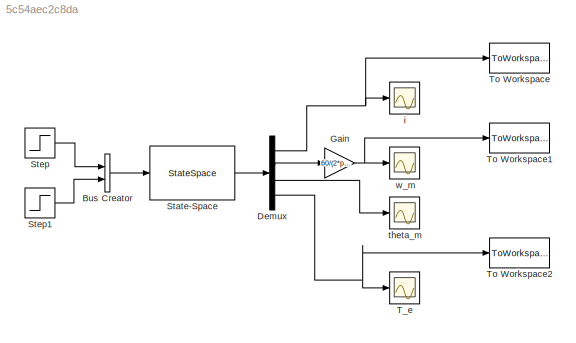
MODEL slx_5c54aec2c8da
KIND model
BLOCK [BusCreator] Bus Creator
  DisplayOption = bar
  Inputs = 2
  Ports = [2, 1]
BLOCK [Demux] Demux
  DisplayOption = bar
  Ports = [1, 4]
BLOCK [Gain] Gain
  Gain = 60/(2*pi)
  OutDataTypeStr = Inherit: Inherit via internal rule
  ParamDataTypeStr = Inherit: Inherit via internal rule
  SaturateOnIntegerOverflow = off
BLOCK [StateSpace] State-Space
  A = A
  B = B
  C = C
  D = D
BLOCK [Step] Step
  After = 12
  SampleTime = 0
  Time = 0
BLOCK [Step] Step1
  After = 0*2e-3
  SampleTime = 0
  Time = 0.2
BLOCK [Scope] T_e
  DataFormat = StructureWithTime
  Floating = off
  LimitDataPoints = off
  NumInputPorts = 1
  Ports = [1]
  SampleTime = 0
  SaveName = ScopeData3
  ShowLegends = off
BLOCK [ToWorkspace] To Workspace
  MaxDataPoints = inf
  Ports = [1]
  SampleTime = -1
  SaveFormat = Timeseries
  VariableName = i_DC
BLOCK [ToWorkspace] To Workspace1
  MaxDataPoints = inf
  Ports = [1]
  SampleTime = -1
  SaveFormat = Timeseries
  VariableName = wm_DC
BLOCK [ToWorkspace] To Workspace2
  MaxDataPoints = inf
  Ports = [1]
  SampleTime = -1
  SaveFormat = Timeseries
  VariableName = Te_DC
BLOCK [Scope] i
  DataFormat = StructureWithTime
  Floating = off
  LimitDataPoints = off
  NumInputPorts = 1
  Ports = [1]
  SampleTime = 0
  SaveName = ScopeData1
  ShowLegends = off
BLOCK [Scope] theta_m
  DataFormat = StructureWithTime
  Floating = off
  LimitDataPoints = off
  NumInputPorts = 1
  Ports = [1]
  SampleTime = 0
  ShowLegends = off
BLOCK [Scope] w_m
  DataFormat = StructureWithTime
  Floating = off
  LimitDataPoints = off
  NumInputPorts = 1
  Ports = [1]
  SampleTime = 0
  SaveName = ScopeData2
  ShowLegends = off
  YMax = 0.35
  YMin = 0.21
LINE Bus Creator:1 -> State-Space:1
NET Demux:1 -> To Workspace:1, i:1
LINE Demux:2 -> Gain:1
LINE Demux:3 -> theta_m:1
NET Demux:4 -> T_e:1, To Workspace2:1
NET Gain:1 -> To Workspace1:1, w_m:1
LINE State-Space:1 -> Demux:1
LINE Step1:1 -> Bus Creator:2
LINE Step:1 -> Bus Creator:1
note: NET lines group one-source signal fan-out (src -> all destinations, sorted); 1:1 wires keep LINE
